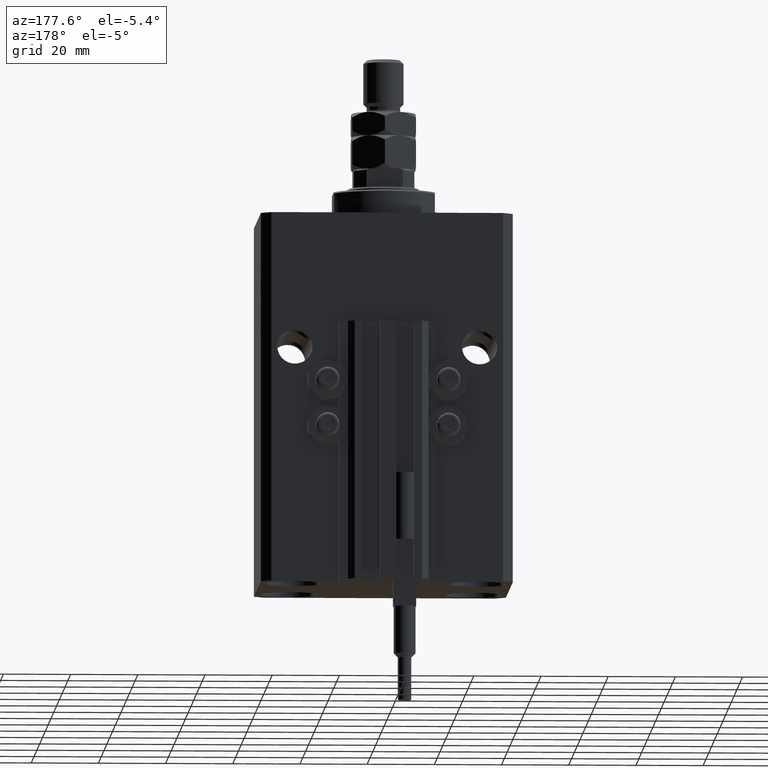
[diagram: clean part render]
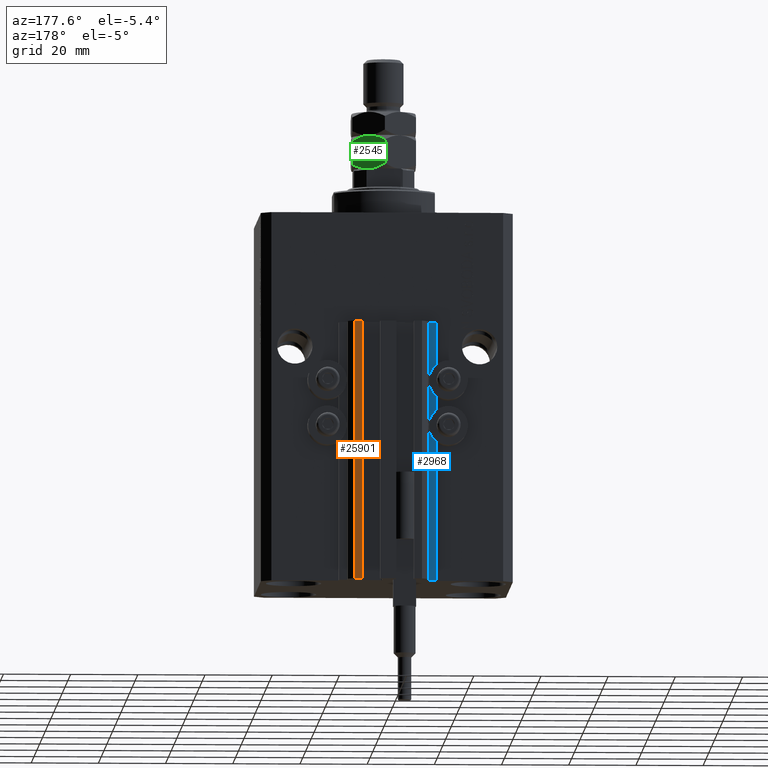
[diagram: same view with three faces highlighted in distinct colors, each labeled with its STEP entity id]
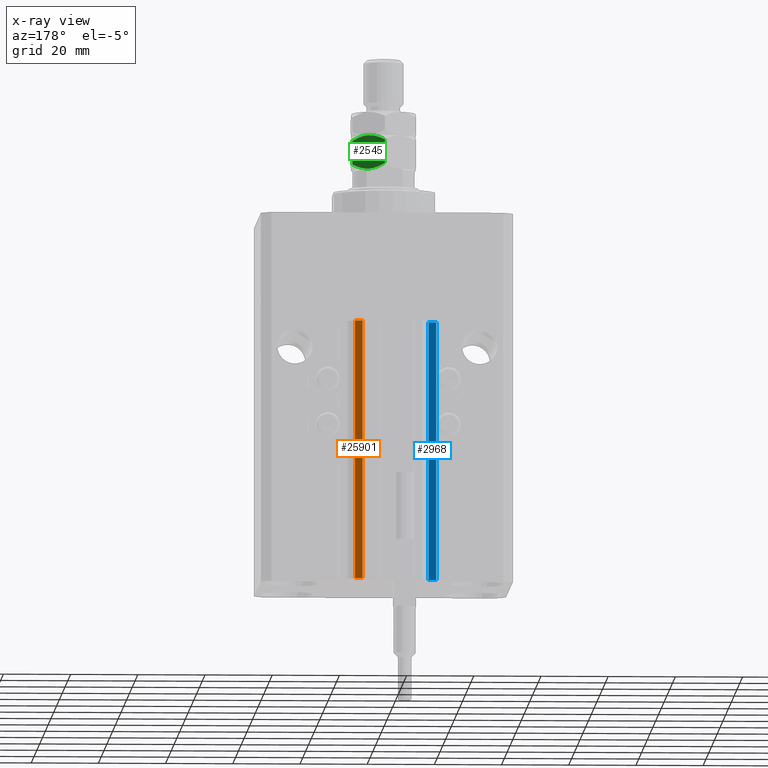
[diagram: x-ray of the same camera — body ghosted, the three highlighted faces saturated]
A machine part, auxiliary view with three faces highlighted in distinct colors.
The next image is the same camera in x-ray (body ghosted, the three faces saturated) — at least one of them is partly hidden behind the body in this view.
Their STEP definitions:

[orange] entity #25901 — the highlighted planar face has unit normal (0, 1, 0).
#1787 = VECTOR ( 'NONE', #17481, 1000.000000000000000 ) ;
#6269 = LINE ( 'NONE', #20468, #1787 ) ;
#6395 = EDGE_CURVE ( 'NONE', #46035, #28930, #37035, .T. ) ;
#6490 = ORIENTED_EDGE ( 'NONE', *, *, #24676, .F. ) ;
#6761 = DIRECTION ( 'NONE',  ( 0.000000000000000000, 0.000000000000000000, 1.000000000000000000 ) ) ;
#6765 = EDGE_LOOP ( 'NONE', ( #26685, #6490, #15564, #20382 ) ) ;
#9323 = VECTOR ( 'NONE', #35706, 1000.000000000000000 ) ;
#9975 = CARTESIAN_POINT ( 'NONE',  ( 7.649999999999998579, 35.50000000000001421, -33.00000000000000000 ) ) ;
#10439 = CARTESIAN_POINT ( 'NONE',  ( 9.999999999999998224, 35.50000000000001421, -33.00000000000000000 ) ) ;
#12114 = AXIS2_PLACEMENT_3D ( 'NONE', #44783, #40815, #6761 ) ;
#13259 = CARTESIAN_POINT ( 'NONE',  ( 9.999999999999998224, 35.50000000000001421, -110.0000000000000000 ) ) ;
#15564 = ORIENTED_EDGE ( 'NONE', *, *, #31264, .T. ) ;
#15752 = CARTESIAN_POINT ( 'NONE',  ( 9.999999999999998224, 35.50000000000001421, -110.0000000000000000 ) ) ;
#16329 = LINE ( 'NONE', #20075, #9323 ) ;
#17012 = LINE ( 'NONE', #13259, #32169 ) ;
#17481 = DIRECTION ( 'NONE',  ( 0.000000000000000000, 0.000000000000000000, 1.000000000000000000 ) ) ;
#17986 = PLANE ( 'NONE',  #12114 ) ;
#18309 = VECTOR ( 'NONE', #25622, 1000.000000000000000 ) ;
#20075 = CARTESIAN_POINT ( 'NONE',  ( 7.649999999999998579, 35.50000000000001421, -110.0000000000000000 ) ) ;
#20382 = ORIENTED_EDGE ( 'NONE', *, *, #40325, .T. ) ;
#20468 = CARTESIAN_POINT ( 'NONE',  ( 9.999999999999998224, 35.50000000000001421, -110.0000000000000000 ) ) ;
#24589 = CARTESIAN_POINT ( 'NONE',  ( 9.999999999999998224, 35.50000000000001421, -33.00000000000000000 ) ) ;
#24676 = EDGE_CURVE ( 'NONE', #37829, #46035, #6269, .T. ) ;
#25622 = DIRECTION ( 'NONE',  ( -1.000000000000000000, 0.000000000000000000, 0.000000000000000000 ) ) ;
#25901 = ADVANCED_FACE ( 'NONE', ( #29873 ), #17986, .T. ) ;
#26237 = VERTEX_POINT ( 'NONE', #35231 ) ;
#26685 = ORIENTED_EDGE ( 'NONE', *, *, #6395, .F. ) ;
#28930 = VERTEX_POINT ( 'NONE', #9975 ) ;
#29873 = FACE_OUTER_BOUND ( 'NONE', #6765, .T. ) ;
#31264 = EDGE_CURVE ( 'NONE', #37829, #26237, #17012, .T. ) ;
#32169 = VECTOR ( 'NONE', #43579, 1000.000000000000000 ) ;
#35231 = CARTESIAN_POINT ( 'NONE',  ( 7.649999999999998579, 35.50000000000001421, -110.0000000000000000 ) ) ;
#35706 = DIRECTION ( 'NONE',  ( 0.000000000000000000, 0.000000000000000000, 1.000000000000000000 ) ) ;
#37035 = LINE ( 'NONE', #10439, #18309 ) ;
#37829 = VERTEX_POINT ( 'NONE', #15752 ) ;
#40325 = EDGE_CURVE ( 'NONE', #26237, #28930, #16329, .T. ) ;
#40815 = DIRECTION ( 'NONE',  ( 0.000000000000000000, 1.000000000000000000, -0.000000000000000000 ) ) ;
#43579 = DIRECTION ( 'NONE',  ( -1.000000000000000000, 0.000000000000000000, 0.000000000000000000 ) ) ;
#44783 = CARTESIAN_POINT ( 'NONE',  ( 9.999999999999998224, 35.50000000000001421, -110.0000000000000000 ) ) ;
#46035 = VERTEX_POINT ( 'NONE', #24589 ) ;

[blue] entity #2968 — the highlighted planar face has unit normal (0, 1, 0).
#487 = EDGE_CURVE ( 'NONE', #15271, #16839, #16034, .T. ) ;
#1016 = CARTESIAN_POINT ( 'NONE',  ( -12.20000000000000107, 29.99999999999998934, -110.0000000000000000 ) ) ;
#2458 = FACE_OUTER_BOUND ( 'NONE', #43599, .T. ) ;
#2968 = ADVANCED_FACE ( 'NONE', ( #2458 ), #13648, .T. ) ;
#5093 = CARTESIAN_POINT ( 'NONE',  ( -12.20000000000000107, 29.99999999999998934, -110.0000000000000000 ) ) ;
#5797 = EDGE_CURVE ( 'NONE', #6227, #15271, #12805, .T. ) ;
#6183 = DIRECTION ( 'NONE',  ( 1.508455196501571429E-15, 1.000000000000000000, -0.000000000000000000 ) ) ;
#6227 = VERTEX_POINT ( 'NONE', #9011 ) ;
#8531 = ORIENTED_EDGE ( 'NONE', *, *, #36213, .T. ) ;
#8780 = DIRECTION ( 'NONE',  ( 0.000000000000000000, 0.000000000000000000, 1.000000000000000000 ) ) ;
#9011 = CARTESIAN_POINT ( 'NONE',  ( -12.20000000000000107, 29.99999999999998934, -110.0000000000000000 ) ) ;
#9507 = VECTOR ( 'NONE', #20290, 1000.000000000000000 ) ;
#9665 = DIRECTION ( 'NONE',  ( -1.000000000000000000, 1.508455196501571429E-15, 0.000000000000000000 ) ) ;
#11601 = VERTEX_POINT ( 'NONE', #23275 ) ;
#12520 = ORIENTED_EDGE ( 'NONE', *, *, #19142, .T. ) ;
#12805 = LINE ( 'NONE', #5093, #9507 ) ;
#13648 = PLANE ( 'NONE',  #47489 ) ;
#15271 = VERTEX_POINT ( 'NONE', #20963 ) ;
#15576 = ORIENTED_EDGE ( 'NONE', *, *, #5797, .F. ) ;
#16034 = LINE ( 'NONE', #31186, #26806 ) ;
#16255 = CARTESIAN_POINT ( 'NONE',  ( -14.50000000000000000, 29.99999999999999289, -110.0000000000000000 ) ) ;
#16839 = VERTEX_POINT ( 'NONE', #31406 ) ;
#19142 = EDGE_CURVE ( 'NONE', #11601, #16839, #27203, .T. ) ;
#19532 = DIRECTION ( 'NONE',  ( -1.000000000000000000, 1.508455196501571429E-15, 0.000000000000000000 ) ) ;
#20290 = DIRECTION ( 'NONE',  ( 0.000000000000000000, 0.000000000000000000, 1.000000000000000000 ) ) ;
#20963 = CARTESIAN_POINT ( 'NONE',  ( -12.20000000000000107, 29.99999999999998934, -33.00000000000000000 ) ) ;
#22307 = ORIENTED_EDGE ( 'NONE', *, *, #487, .F. ) ;
#23171 = DIRECTION ( 'NONE',  ( -1.000000000000000000, 1.508455196501571429E-15, 0.000000000000000000 ) ) ;
#23275 = CARTESIAN_POINT ( 'NONE',  ( -14.50000000000000000, 29.99999999999999289, -110.0000000000000000 ) ) ;
#23910 = LINE ( 'NONE', #1016, #38545 ) ;
#24600 = CARTESIAN_POINT ( 'NONE',  ( -12.20000000000000107, 29.99999999999998934, -110.0000000000000000 ) ) ;
#26806 = VECTOR ( 'NONE', #19532, 1000.000000000000000 ) ;
#27203 = LINE ( 'NONE', #16255, #47759 ) ;
#31186 = CARTESIAN_POINT ( 'NONE',  ( -12.20000000000000107, 29.99999999999998934, -33.00000000000000000 ) ) ;
#31406 = CARTESIAN_POINT ( 'NONE',  ( -14.50000000000000000, 29.99999999999999289, -33.00000000000000000 ) ) ;
#36213 = EDGE_CURVE ( 'NONE', #6227, #11601, #23910, .T. ) ;
#38545 = VECTOR ( 'NONE', #23171, 1000.000000000000000 ) ;
#43599 = EDGE_LOOP ( 'NONE', ( #22307, #15576, #8531, #12520 ) ) ;
#47489 = AXIS2_PLACEMENT_3D ( 'NONE', #24600, #6183, #9665 ) ;
#47759 = VECTOR ( 'NONE', #8780, 1000.000000000000000 ) ;

[green] entity #2545 — the highlighted planar face has unit normal (-0.5, -0.866, 0).
#164 = CARTESIAN_POINT ( 'NONE',  ( 3.911732050025009677, 8.711215562523262790, 0.03770576873299955750 ) ) ;
#846 = CARTESIAN_POINT ( 'NONE',  ( 9.500000000000000000, 5.484827557301445999, 1.469655114602884671 ) ) ;
#946 = CARTESIAN_POINT ( 'NONE',  ( 3.111617971331827270, 9.173161641239184760, 9.854124384224535405 ) ) ;
#1088 = VERTEX_POINT ( 'NONE', #8676 ) ;
#1977 = B_SPLINE_CURVE_WITH_KNOTS ( 'NONE', 3,
 ( #39431, #4384, #34953, #43155, #27767, #16082 ),
 .UNSPECIFIED., .F., .F.,
 ( 4, 2, 4 ),
 ( 0.005685775058177688912, 0.008508623398180321928, 0.01133147173818295668 ),
 .UNSPECIFIED. ) ;
#2185 = ORIENTED_EDGE ( 'NONE', *, *, #34014, .F. ) ;
#2257 = B_SPLINE_CURVE_WITH_KNOTS ( 'NONE', 3,
 ( #15435, #30839, #31083, #39021, #23635, #4232, #8692, #31581 ),
 .UNSPECIFIED., .F., .F.,
 ( 4, 2, 2, 4 ),
 ( 2.544312669948822529E-07, 0.002843014744722341565, 0.004264394901450016540, 0.005685775058177690647 ),
 .UNSPECIFIED. ) ;
#2545 = ADVANCED_FACE ( 'NONE', ( #11479 ), #26663, .F. ) ;
#2702 = VERTEX_POINT ( 'NONE', #41738 ) ;
#3312 = VECTOR ( 'NONE', #4297, 1000.000000000000000 ) ;
#4015 = DIRECTION ( 'NONE',  ( -0.4999999999999998335, -0.8660254037844388186, 0.000000000000000000 ) ) ;
#4232 = CARTESIAN_POINT ( 'NONE',  ( 5.588267949974992987, 7.743267109381068991, 9.962294231267000200 ) ) ;
#4297 = DIRECTION ( 'NONE',  ( -0.000000000000000000, -0.000000000000000000, -1.000000000000000000 ) ) ;
#4384 = CARTESIAN_POINT ( 'NONE',  ( 5.576215397865947665, 7.750225653585646413, -3.354250471127028357E-16 ) ) ;
#4801 = CARTESIAN_POINT ( 'NONE',  ( 7.043584025308272669E-16, 10.96965511460288667, 1.469655114602882007 ) ) ;
#5603 = CARTESIAN_POINT ( 'NONE',  ( 9.500000000000000000, 5.484827557301445111, 10.00000000000000000 ) ) ;
#5605 = B_SPLINE_CURVE_WITH_KNOTS ( 'NONE', 3,
 ( #31528, #27318, #946, #46195, #34754, #12133 ),
 .UNSPECIFIED., .F., .F.,
 ( 4, 2, 4 ),
 ( 0.005685775058177690647, 0.008508623398180323663, 0.01133147173818295668 ),
 .UNSPECIFIED. ) ;
#6380 = VECTOR ( 'NONE', #32217, 1000.000000000000000 ) ;
#7046 = VERTEX_POINT ( 'NONE', #4801 ) ;
#7311 = LINE ( 'NONE', #23213, #3312 ) ;
#8102 = CARTESIAN_POINT ( 'NONE',  ( 0.7448681452486597410, 10.53960529043279415, 1.039605290432792151 ) ) ;
#8676 = CARTESIAN_POINT ( 'NONE',  ( -3.412354640325339130E-17, 10.96965511460288667, 8.530344885397118659 ) ) ;
#8692 = CARTESIAN_POINT ( 'NONE',  ( 5.166021702288277062, 7.987051094147303409, 10.00000000000000000 ) ) ;
#8810 = ORIENTED_EDGE ( 'NONE', *, *, #22780, .F. ) ;
#9339 = LINE ( 'NONE', #5603, #6380 ) ;
#11479 = FACE_OUTER_BOUND ( 'NONE', #34656, .T. ) ;
#12133 = CARTESIAN_POINT ( 'NONE',  ( -3.412354640325339130E-17, 10.96965511460288667, 8.530344885397118659 ) ) ;
#14228 = ORIENTED_EDGE ( 'NONE', *, *, #16653, .T. ) ;
#15435 = CARTESIAN_POINT ( 'NONE',  ( 9.500000000000000000, 5.484827557301445111, 8.530344885397115107 ) ) ;
#15585 = CARTESIAN_POINT ( 'NONE',  ( 7.043584025308272669E-16, 10.96965511460288667, 1.469655114602882007 ) ) ;
#16082 = CARTESIAN_POINT ( 'NONE',  ( 9.500000000000000000, 5.484827557301445999, 1.469655114602884671 ) ) ;
#16653 = EDGE_CURVE ( 'NONE', #2702, #20848, #9339, .T. ) ;
#19087 = CARTESIAN_POINT ( 'NONE',  ( 1.506594318812382260, 10.09982247907699637, 0.6741748824712761046 ) ) ;
#19543 = EDGE_CURVE ( 'NONE', #7046, #24875, #33962, .T. ) ;
#20848 = VERTEX_POINT ( 'NONE', #846 ) ;
#22780 = EDGE_CURVE ( 'NONE', #1088, #7046, #7311, .T. ) ;
#22886 = AXIS2_PLACEMENT_3D ( 'NONE', #37353, #4015, #41080 ) ;
#23213 = CARTESIAN_POINT ( 'NONE',  ( 0.000000000000000000, 10.96965511460288667, 10.00000000000000000 ) ) ;
#23635 = CARTESIAN_POINT ( 'NONE',  ( 6.408273631871775677, 7.269836608200939132, 9.820258145287965590 ) ) ;
#24875 = VERTEX_POINT ( 'NONE', #34552 ) ;
#26663 = PLANE ( 'NONE',  #22886 ) ;
#27318 = CARTESIAN_POINT ( 'NONE',  ( 3.923784602134051447, 8.704257018318687145, 10.00000000000000178 ) ) ;
#27767 = CARTESIAN_POINT ( 'NONE',  ( 8.755994125639036341, 5.914379549142410042, 1.040103122761829368 ) ) ;
#30259 = CARTESIAN_POINT ( 'NONE',  ( 3.091726368128225655, 9.184646063703393537, 0.1797418547120336607 ) ) ;
#30566 = EDGE_CURVE ( 'NONE', #2702, #46016, #2257, .T. ) ;
#30839 = CARTESIAN_POINT ( 'NONE',  ( 8.755131854751343923, 5.914877381471537632, 8.960394709567205851 ) ) ;
#30985 = CARTESIAN_POINT ( 'NONE',  ( 4.333978297711723826, 8.467431577757027483, -4.811147140404423954E-16 ) ) ;
#31083 = CARTESIAN_POINT ( 'NONE',  ( 7.993405681187616629, 6.354660192827334519, 9.325825117528722785 ) ) ;
#31528 = CARTESIAN_POINT ( 'NONE',  ( 4.750000000000000888, 8.227241335952163226, 10.00000000000000000 ) ) ;
#31581 = CARTESIAN_POINT ( 'NONE',  ( 4.750000000000000888, 8.227241335952163226, 10.00000000000000000 ) ) ;
#32217 = DIRECTION ( 'NONE',  ( -0.000000000000000000, -0.000000000000000000, -1.000000000000000000 ) ) ;
#33962 = B_SPLINE_CURVE_WITH_KNOTS ( 'NONE', 3,
 ( #15585, #8102, #19087, #45904, #30259, #164, #30985, #34704 ),
 .UNSPECIFIED., .F., .F.,
 ( 4, 2, 2, 4 ),
 ( 2.544312669947371985E-07, 0.002843014744722341131, 0.004264394901450013937, 0.005685775058177688912 ),
 .UNSPECIFIED. ) ;
#34014 = EDGE_CURVE ( 'NONE', #24875, #20848, #1977, .T. ) ;
#34552 = CARTESIAN_POINT ( 'NONE',  ( 4.749999999999998224, 8.227241335952168555, 0.000000000000000000 ) ) ;
#34656 = EDGE_LOOP ( 'NONE', ( #48079, #8810, #38002, #36406, #14228, #2185 ) ) ;
#34704 = CARTESIAN_POINT ( 'NONE',  ( 4.749999999999998224, 8.227241335952168555, 0.000000000000000000 ) ) ;
#34754 = CARTESIAN_POINT ( 'NONE',  ( 0.7440058743609633263, 10.54010312276191996, 8.959896877238174184 ) ) ;
#34953 = CARTESIAN_POINT ( 'NONE',  ( 6.388382028668172730, 7.281321030665154126, 0.1458756157754674820 ) ) ;
#36406 = ORIENTED_EDGE ( 'NONE', *, *, #30566, .F. ) ;
#37353 = CARTESIAN_POINT ( 'NONE',  ( 9.500000000000000000, 5.484827557301445111, 10.00000000000000000 ) ) ;
#38002 = ORIENTED_EDGE ( 'NONE', *, *, #45997, .F. ) ;
#38725 = CARTESIAN_POINT ( 'NONE',  ( 4.750000000000000888, 8.227241335952163226, 10.00000000000000000 ) ) ;
#39021 = CARTESIAN_POINT ( 'NONE',  ( 6.809745054052672941, 7.038046974532853994, 9.716537861568809831 ) ) ;
#39431 = CARTESIAN_POINT ( 'NONE',  ( 4.749999999999998224, 8.227241335952168555, 0.000000000000000000 ) ) ;
#41080 = DIRECTION ( 'NONE',  ( 0.8660254037844387076, -0.4999999999999997780, 0.000000000000000000 ) ) ;
#41738 = CARTESIAN_POINT ( 'NONE',  ( 9.500000000000000000, 5.484827557301445111, 8.530344885397115107 ) ) ;
#43155 = CARTESIAN_POINT ( 'NONE',  ( 7.990178599141542826, 6.356523349515333265, 0.6716369694512659416 ) ) ;
#45904 = CARTESIAN_POINT ( 'NONE',  ( 2.690254945947325282, 9.416435697371476010, 0.2834621384311878933 ) ) ;
#45997 = EDGE_CURVE ( 'NONE', #46016, #1088, #5605, .T. ) ;
#46016 = VERTEX_POINT ( 'NONE', #38725 ) ;
#46195 = CARTESIAN_POINT ( 'NONE',  ( 1.509821400858456730, 10.09795932238899852, 9.328363030548736390 ) ) ;
#48079 = ORIENTED_EDGE ( 'NONE', *, *, #19543, .F. ) ;